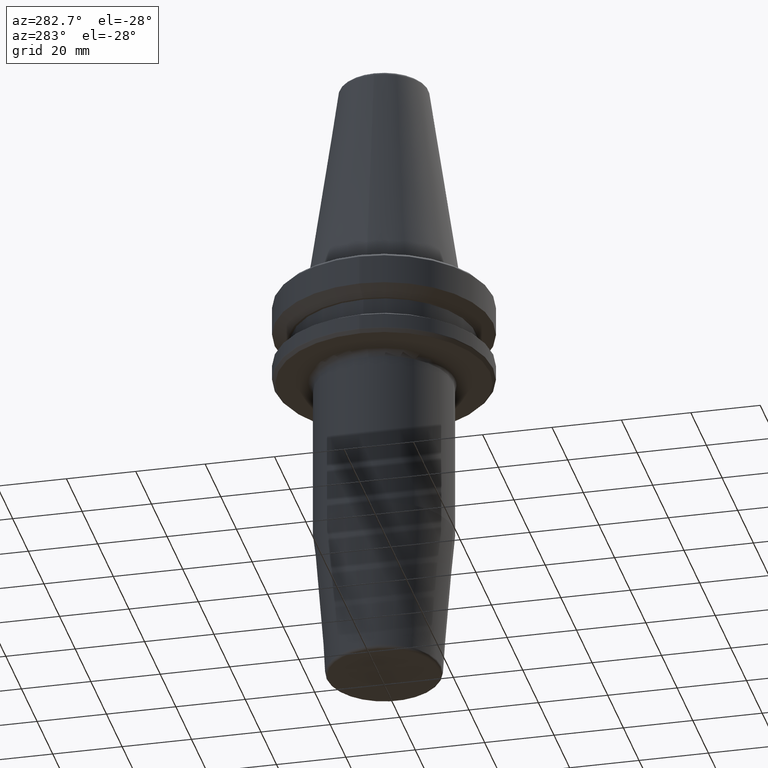
[diagram: clean part render]
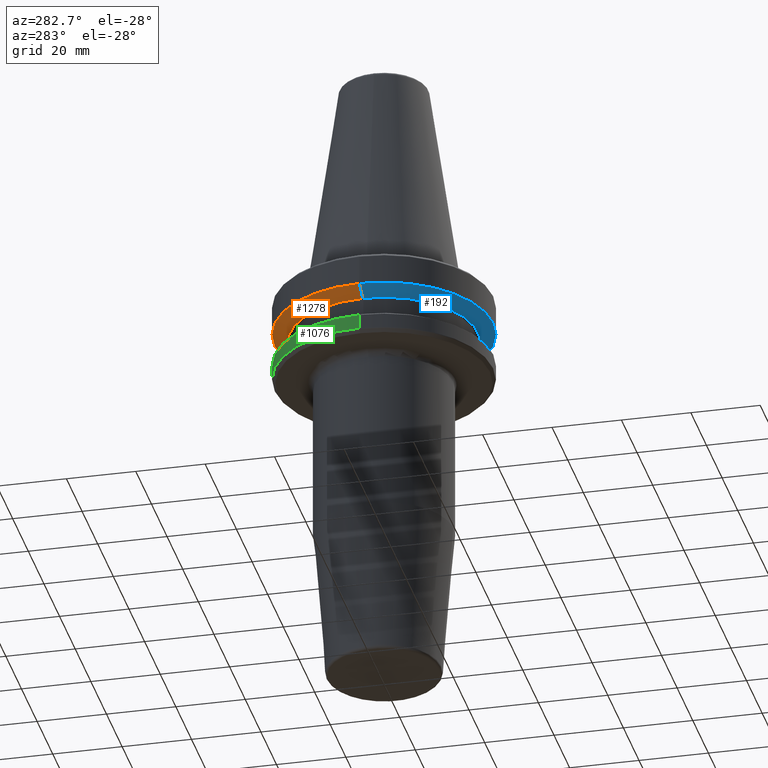
[diagram: same view with three faces highlighted in distinct colors, each labeled with its STEP entity id]
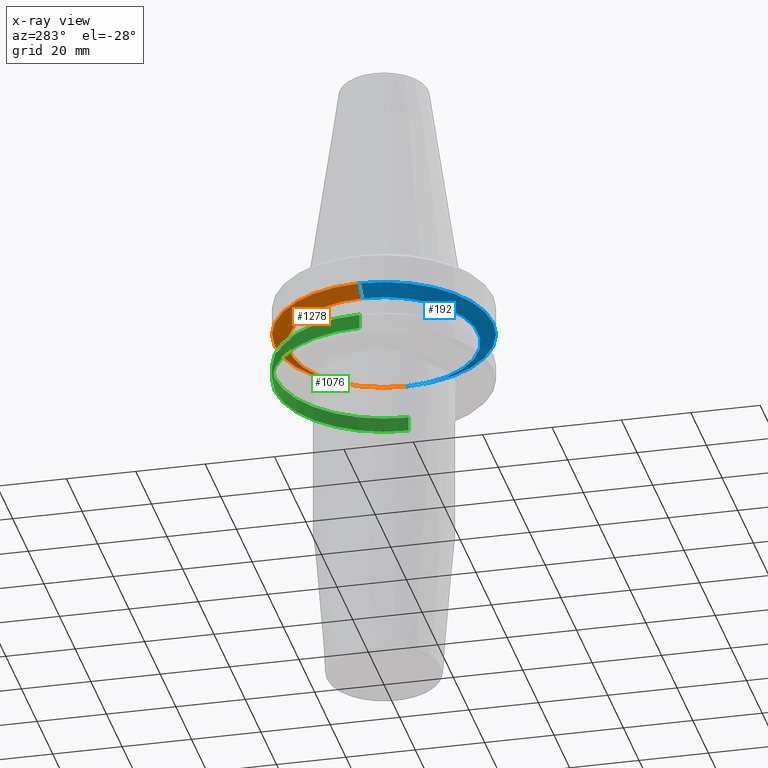
[diagram: x-ray of the same camera — body ghosted, the three highlighted faces saturated]
A machine part, auxiliary view with three faces highlighted in distinct colors.
The next image is the same camera in x-ray (body ghosted, the three faces saturated) — at least one of them is partly hidden behind the body in this view.
Their STEP definitions:

[orange] entity #1278 — the highlighted conical surface has half-angle 60 deg.
#41 = VERTEX_POINT ( 'NONE', #313 ) ;
#60 = DIRECTION ( 'NONE',  ( 1.000000000000000000, 0.0000000000000000000, 0.0000000000000000000 ) ) ;
#64 = AXIS2_PLACEMENT_3D ( 'NONE', #474, #96, #679 ) ;
#78 = CARTESIAN_POINT ( 'NONE',  ( 0.0000000000000000000, 0.0000000000000000000, -14.10000000000000100 ) ) ;
#96 = DIRECTION ( 'NONE',  ( -0.0000000000000000000, -0.0000000000000000000, 1.000000000000000000 ) ) ;
#97 = DIRECTION ( 'NONE',  ( 1.000000000000000000, 0.0000000000000000000, 0.0000000000000000000 ) ) ;
#100 = DIRECTION ( 'NONE',  ( -0.8660254037844393700, 1.060575238724907800E-016, 0.4999999999999985000 ) ) ;
#170 = AXIS2_PLACEMENT_3D ( 'NONE', #78, #171, #60 ) ;
#171 = DIRECTION ( 'NONE',  ( -0.0000000000000000000, -0.0000000000000000000, 1.000000000000000000 ) ) ;
#247 = CARTESIAN_POINT ( 'NONE',  ( 27.16962701892216000, 0.0000000000000000000, -14.10000000000000100 ) ) ;
#274 = DIRECTION ( 'NONE',  ( 0.8660254037844393700, 0.0000000000000000000, 0.4999999999999985000 ) ) ;
#305 = VECTOR ( 'NONE', #274, 1000.000000000000100 ) ;
#313 = CARTESIAN_POINT ( 'NONE',  ( -27.16962701892216000, 3.592478546794604700E-015, -14.10000000000000100 ) ) ;
#356 = VERTEX_POINT ( 'NONE', #538 ) ;
#365 = ORIENTED_EDGE ( 'NONE', *, *, #1161, .T. ) ;
#474 = CARTESIAN_POINT ( 'NONE',  ( 0.0000000000000000000, 0.0000000000000000000, -11.59985799368323700 ) ) ;
#489 = EDGE_CURVE ( 'NONE', #41, #356, #877, .T. ) ;
#538 = CARTESIAN_POINT ( 'NONE',  ( -31.50000000000000000, 3.857637417314162700E-015, -11.59985799368323700 ) ) ;
#548 = ORIENTED_EDGE ( 'NONE', *, *, #489, .T. ) ;
#553 = EDGE_LOOP ( 'NONE', ( #365, #548, #611, #1040 ) ) ;
#611 = ORIENTED_EDGE ( 'NONE', *, *, #1012, .F. ) ;
#612 = FACE_OUTER_BOUND ( 'NONE', #553, .T. ) ;
#674 = CARTESIAN_POINT ( 'NONE',  ( 31.50000000000000000, 0.0000000000000000000, -11.59985799368323700 ) ) ;
#679 = DIRECTION ( 'NONE',  ( 1.000000000000000000, 0.0000000000000000000, 0.0000000000000000000 ) ) ;
#687 = CARTESIAN_POINT ( 'NONE',  ( -31.50000000000000000, 3.857637417314162700E-015, -11.59985799368323700 ) ) ;
#690 = DIRECTION ( 'NONE',  ( -0.0000000000000000000, -0.0000000000000000000, 1.000000000000000000 ) ) ;
#733 = CIRCLE ( 'NONE', #170, 27.16962701892216000 ) ;
#768 = CARTESIAN_POINT ( 'NONE',  ( 31.50000000000000000, 0.0000000000000000000, -11.59985799368323700 ) ) ;
#770 = VERTEX_POINT ( 'NONE', #768 ) ;
#812 = EDGE_CURVE ( 'NONE', #843, #770, #1038, .T. ) ;
#839 = AXIS2_PLACEMENT_3D ( 'NONE', #1187, #690, #97 ) ;
#843 = VERTEX_POINT ( 'NONE', #247 ) ;
#844 = CONICAL_SURFACE ( 'NONE', #839, 31.50000000000000000, 1.047197551196599400 ) ;
#877 = LINE ( 'NONE', #687, #1147 ) ;
#1012 = EDGE_CURVE ( 'NONE', #770, #356, #1154, .T. ) ;
#1038 = LINE ( 'NONE', #674, #305 ) ;
#1040 = ORIENTED_EDGE ( 'NONE', *, *, #812, .F. ) ;
#1147 = VECTOR ( 'NONE', #100, 1000.000000000000100 ) ;
#1154 = CIRCLE ( 'NONE', #64, 31.50000000000000000 ) ;
#1161 = EDGE_CURVE ( 'NONE', #843, #41, #733, .T. ) ;
#1187 = CARTESIAN_POINT ( 'NONE',  ( 0.0000000000000000000, 0.0000000000000000000, -11.59985799368323700 ) ) ;
#1278 = ADVANCED_FACE ( 'NONE', ( #612 ), #844, .T. ) ;

[blue] entity #192 — the highlighted conical surface has half-angle 60 deg.
#10 = CARTESIAN_POINT ( 'NONE',  ( 0.0000000000000000000, 0.0000000000000000000, -11.59985799368323700 ) ) ;
#41 = VERTEX_POINT ( 'NONE', #313 ) ;
#100 = DIRECTION ( 'NONE',  ( -0.8660254037844393700, 1.060575238724907800E-016, 0.4999999999999985000 ) ) ;
#103 = AXIS2_PLACEMENT_3D ( 'NONE', #10, #113, #1116 ) ;
#112 = FACE_OUTER_BOUND ( 'NONE', #584, .T. ) ;
#113 = DIRECTION ( 'NONE',  ( -0.0000000000000000000, -0.0000000000000000000, 1.000000000000000000 ) ) ;
#192 = ADVANCED_FACE ( 'NONE', ( #112 ), #1101, .T. ) ;
#247 = CARTESIAN_POINT ( 'NONE',  ( 27.16962701892216000, 0.0000000000000000000, -14.10000000000000100 ) ) ;
#274 = DIRECTION ( 'NONE',  ( 0.8660254037844393700, 0.0000000000000000000, 0.4999999999999985000 ) ) ;
#305 = VECTOR ( 'NONE', #274, 1000.000000000000100 ) ;
#313 = CARTESIAN_POINT ( 'NONE',  ( -27.16962701892216000, 3.592478546794604700E-015, -14.10000000000000100 ) ) ;
#356 = VERTEX_POINT ( 'NONE', #538 ) ;
#370 = EDGE_CURVE ( 'NONE', #41, #843, #899, .T. ) ;
#382 = ORIENTED_EDGE ( 'NONE', *, *, #645, .F. ) ;
#489 = EDGE_CURVE ( 'NONE', #41, #356, #877, .T. ) ;
#538 = CARTESIAN_POINT ( 'NONE',  ( -31.50000000000000000, 3.857637417314162700E-015, -11.59985799368323700 ) ) ;
#584 = EDGE_LOOP ( 'NONE', ( #706, #1069, #927, #382 ) ) ;
#645 = EDGE_CURVE ( 'NONE', #356, #770, #689, .T. ) ;
#674 = CARTESIAN_POINT ( 'NONE',  ( 31.50000000000000000, 0.0000000000000000000, -11.59985799368323700 ) ) ;
#684 = DIRECTION ( 'NONE',  ( -0.0000000000000000000, -0.0000000000000000000, 1.000000000000000000 ) ) ;
#687 = CARTESIAN_POINT ( 'NONE',  ( -31.50000000000000000, 3.857637417314162700E-015, -11.59985799368323700 ) ) ;
#689 = CIRCLE ( 'NONE', #1269, 31.50000000000000000 ) ;
#706 = ORIENTED_EDGE ( 'NONE', *, *, #489, .F. ) ;
#768 = CARTESIAN_POINT ( 'NONE',  ( 31.50000000000000000, 0.0000000000000000000, -11.59985799368323700 ) ) ;
#770 = VERTEX_POINT ( 'NONE', #768 ) ;
#773 = DIRECTION ( 'NONE',  ( -0.0000000000000000000, -0.0000000000000000000, 1.000000000000000000 ) ) ;
#790 = CARTESIAN_POINT ( 'NONE',  ( 0.0000000000000000000, 0.0000000000000000000, -11.59985799368323700 ) ) ;
#812 = EDGE_CURVE ( 'NONE', #843, #770, #1038, .T. ) ;
#843 = VERTEX_POINT ( 'NONE', #247 ) ;
#877 = LINE ( 'NONE', #687, #1147 ) ;
#899 = CIRCLE ( 'NONE', #1097, 27.16962701892216000 ) ;
#927 = ORIENTED_EDGE ( 'NONE', *, *, #812, .T. ) ;
#1038 = LINE ( 'NONE', #674, #305 ) ;
#1069 = ORIENTED_EDGE ( 'NONE', *, *, #370, .T. ) ;
#1097 = AXIS2_PLACEMENT_3D ( 'NONE', #1274, #773, #1173 ) ;
#1101 = CONICAL_SURFACE ( 'NONE', #103, 31.50000000000000000, 1.047197551196599400 ) ;
#1116 = DIRECTION ( 'NONE',  ( 1.000000000000000000, 0.0000000000000000000, 0.0000000000000000000 ) ) ;
#1147 = VECTOR ( 'NONE', #100, 1000.000000000000100 ) ;
#1173 = DIRECTION ( 'NONE',  ( 1.000000000000000000, 0.0000000000000000000, 0.0000000000000000000 ) ) ;
#1216 = DIRECTION ( 'NONE',  ( 1.000000000000000000, 0.0000000000000000000, 0.0000000000000000000 ) ) ;
#1269 = AXIS2_PLACEMENT_3D ( 'NONE', #790, #684, #1216 ) ;
#1274 = CARTESIAN_POINT ( 'NONE',  ( 0.0000000000000000000, 0.0000000000000000000, -14.10000000000000100 ) ) ;

[green] entity #1076 — the highlighted cylindrical surface (partial cylindrical patch) has radius 31.5 mm, axis along (-0, -0, 1).
#16 = DIRECTION ( 'NONE',  ( 1.000000000000000000, 0.0000000000000000000, 0.0000000000000000000 ) ) ;
#54 = VERTEX_POINT ( 'NONE', #705 ) ;
#122 = ORIENTED_EDGE ( 'NONE', *, *, #965, .T. ) ;
#185 = EDGE_CURVE ( 'NONE', #240, #54, #357, .T. ) ;
#223 = DIRECTION ( 'NONE',  ( 1.000000000000000000, 0.0000000000000000000, 0.0000000000000000000 ) ) ;
#240 = VERTEX_POINT ( 'NONE', #897 ) ;
#243 = CIRCLE ( 'NONE', #1198, 31.50000000000000000 ) ;
#270 = LINE ( 'NONE', #1191, #764 ) ;
#292 = EDGE_CURVE ( 'NONE', #1259, #240, #270, .T. ) ;
#304 = CARTESIAN_POINT ( 'NONE',  ( 0.0000000000000000000, 0.0000000000000000000, 69.75694866325665100 ) ) ;
#346 = ORIENTED_EDGE ( 'NONE', *, *, #292, .F. ) ;
#357 = CIRCLE ( 'NONE', #1250, 31.50000000000000000 ) ;
#358 = CARTESIAN_POINT ( 'NONE',  ( 0.0000000000000000000, 0.0000000000000000000, -25.83431457505076900 ) ) ;
#526 = CYLINDRICAL_SURFACE ( 'NONE', #859, 31.50000000000000000 ) ;
#653 = VECTOR ( 'NONE', #709, 1000.000000000000000 ) ;
#705 = CARTESIAN_POINT ( 'NONE',  ( -31.50000000000000000, 3.857637417314162700E-015, -21.60014200631675500 ) ) ;
#709 = DIRECTION ( 'NONE',  ( -0.0000000000000000000, -0.0000000000000000000, 1.000000000000000000 ) ) ;
#720 = ORIENTED_EDGE ( 'NONE', *, *, #1121, .T. ) ;
#764 = VECTOR ( 'NONE', #1163, 1000.000000000000000 ) ;
#778 = CARTESIAN_POINT ( 'NONE',  ( 31.50000000000000000, 0.0000000000000000000, -25.83431457505076900 ) ) ;
#814 = CARTESIAN_POINT ( 'NONE',  ( 0.0000000000000000000, 0.0000000000000000000, -21.60014200631675500 ) ) ;
#855 = FACE_OUTER_BOUND ( 'NONE', #1091, .T. ) ;
#859 = AXIS2_PLACEMENT_3D ( 'NONE', #304, #1201, #16 ) ;
#897 = CARTESIAN_POINT ( 'NONE',  ( 31.50000000000000000, 0.0000000000000000000, -21.60014200631675500 ) ) ;
#932 = ORIENTED_EDGE ( 'NONE', *, *, #185, .F. ) ;
#965 = EDGE_CURVE ( 'NONE', #1200, #54, #1188, .T. ) ;
#974 = CARTESIAN_POINT ( 'NONE',  ( -31.50000000000000000, 3.857637417314162700E-015, -25.83431457505076900 ) ) ;
#1017 = DIRECTION ( 'NONE',  ( -0.0000000000000000000, -0.0000000000000000000, 1.000000000000000000 ) ) ;
#1056 = DIRECTION ( 'NONE',  ( -0.0000000000000000000, -0.0000000000000000000, 1.000000000000000000 ) ) ;
#1076 = ADVANCED_FACE ( 'NONE', ( #855 ), #526, .T. ) ;
#1091 = EDGE_LOOP ( 'NONE', ( #720, #122, #932, #346 ) ) ;
#1121 = EDGE_CURVE ( 'NONE', #1259, #1200, #243, .T. ) ;
#1163 = DIRECTION ( 'NONE',  ( -0.0000000000000000000, -0.0000000000000000000, 1.000000000000000000 ) ) ;
#1188 = LINE ( 'NONE', #1203, #653 ) ;
#1191 = CARTESIAN_POINT ( 'NONE',  ( 31.50000000000000000, 0.0000000000000000000, 69.75694866325665100 ) ) ;
#1198 = AXIS2_PLACEMENT_3D ( 'NONE', #358, #1056, #1245 ) ;
#1200 = VERTEX_POINT ( 'NONE', #974 ) ;
#1201 = DIRECTION ( 'NONE',  ( -0.0000000000000000000, -0.0000000000000000000, 1.000000000000000000 ) ) ;
#1203 = CARTESIAN_POINT ( 'NONE',  ( -31.50000000000000000, 3.857637417314162700E-015, 69.75694866325665100 ) ) ;
#1245 = DIRECTION ( 'NONE',  ( 1.000000000000000000, 0.0000000000000000000, 0.0000000000000000000 ) ) ;
#1250 = AXIS2_PLACEMENT_3D ( 'NONE', #814, #1017, #223 ) ;
#1259 = VERTEX_POINT ( 'NONE', #778 ) ;